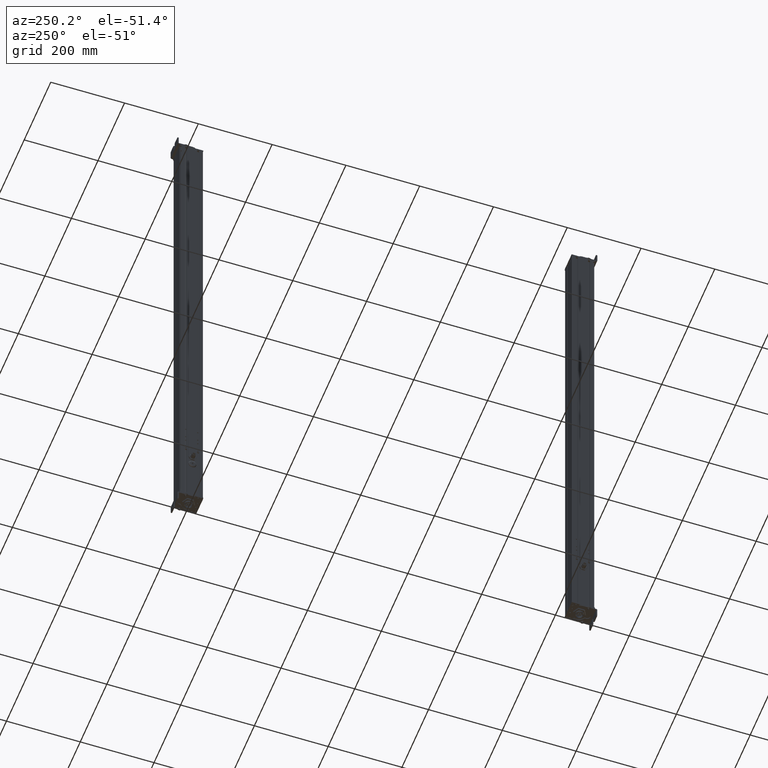
[diagram: clean part render]
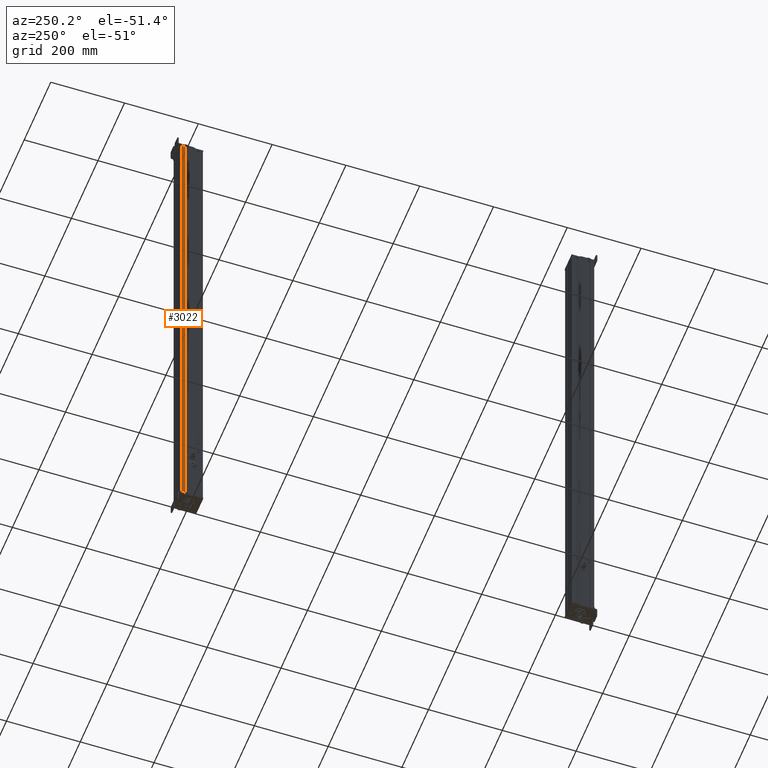
[diagram: same view with one face highlighted and labeled with its STEP entity id]
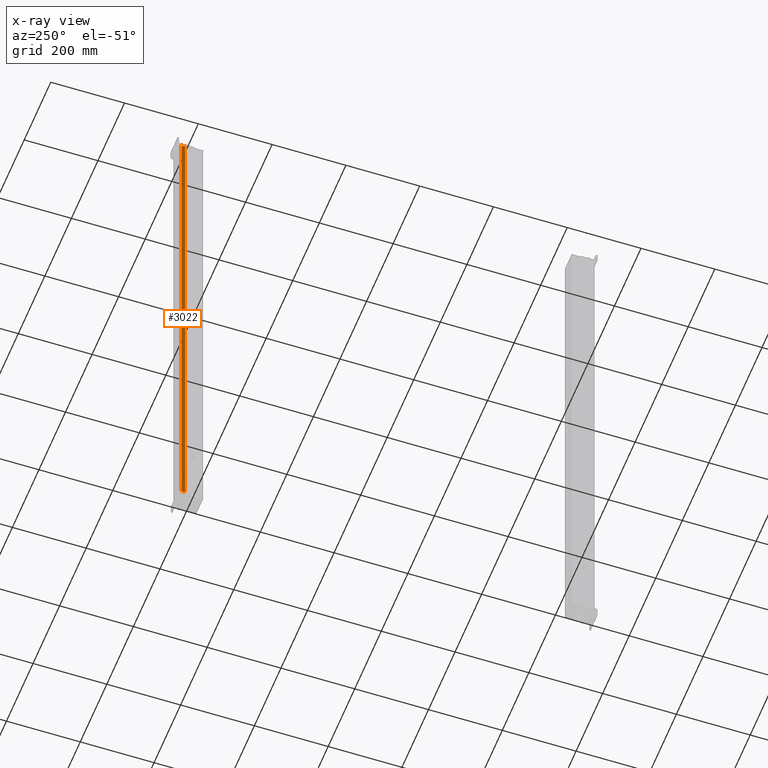
[diagram: x-ray of the same camera — body ghosted, the highlighted face saturated]
A machine part, auxiliary view. The second image highlights one B-rep face of the part: STEP entity #3022.
The next image is the same camera in x-ray: the body ghosted, the highlighted face saturated — about 0% of this face is hidden behind the body in this view.
In plain terms, the highlighted planar face has unit normal (-1, 0, 0).
Its self-contained STEP definition (entity closure, byte-faithful):
#2970=CARTESIAN_POINT('Vertex',(666.195883661,124.112001771,0.)) ;
#2973=CARTESIAN_POINT('Line Origine',(666.195883661,124.112001771,706.)) ;
#2977=CARTESIAN_POINT('Vertex',(666.195883661,124.112001771,1412.)) ;
#2992=CARTESIAN_POINT('Axis2P3D Location',(666.195883662,171.710394004,0.)) ;
#2997=CARTESIAN_POINT('Line Origine',(666.195883662,128.589896023,0.)) ;
#3001=CARTESIAN_POINT('Vertex',(666.195883662,133.067790275,0.)) ;
#3004=CARTESIAN_POINT('Line Origine',(666.195883662,133.067790275,706.)) ;
#3008=CARTESIAN_POINT('Vertex',(666.195883662,133.067790275,1412.)) ;
#3011=CARTESIAN_POINT('Line Origine',(666.195883662,128.589896023,1412.)) ;
#2974=DIRECTION('Vector Direction',(0.,0.,1.)) ;
#2993=DIRECTION('Axis2P3D Direction',(1.,0.,0.)) ;
#2994=DIRECTION('Axis2P3D XDirection',(0.,1.,0.)) ;
#2998=DIRECTION('Vector Direction',(0.,1.,0.)) ;
#3005=DIRECTION('Vector Direction',(0.,0.,1.)) ;
#3012=DIRECTION('Vector Direction',(0.,1.,0.)) ;
#2995=AXIS2_PLACEMENT_3D('Plane Axis2P3D',#2992,#2993,#2994) ;
#3017=ORIENTED_EDGE('',*,*,#2979,.F.) ;
#3018=ORIENTED_EDGE('',*,*,#3003,.T.) ;
#3019=ORIENTED_EDGE('',*,*,#3010,.T.) ;
#3020=ORIENTED_EDGE('',*,*,#3015,.F.) ;
#2975=VECTOR('Line Direction',#2974,1.) ;
#2999=VECTOR('Line Direction',#2998,1.) ;
#3006=VECTOR('Line Direction',#3005,1.) ;
#3013=VECTOR('Line Direction',#3012,1.) ;
#3022=ADVANCED_FACE('Body.2',(#3021),#2996,.T.) ;
#2979=EDGE_CURVE('',#2971,#2978,#2976,.T.) ;
#3003=EDGE_CURVE('',#2971,#3002,#3000,.T.) ;
#3010=EDGE_CURVE('',#3002,#3009,#3007,.T.) ;
#3015=EDGE_CURVE('',#2978,#3009,#3014,.T.) ;
#3016=EDGE_LOOP('',(#3017,#3018,#3019,#3020)) ;
#3021=FACE_OUTER_BOUND('',#3016,.T.) ;
#2976=LINE('Line',#2973,#2975) ;
#3000=LINE('Line',#2997,#2999) ;
#3007=LINE('Line',#3004,#3006) ;
#3014=LINE('Line',#3011,#3013) ;
#2996=PLANE('Plane',#2995) ;
#2971=VERTEX_POINT('',#2970) ;
#2978=VERTEX_POINT('',#2977) ;
#3002=VERTEX_POINT('',#3001) ;
#3009=VERTEX_POINT('',#3008) ;